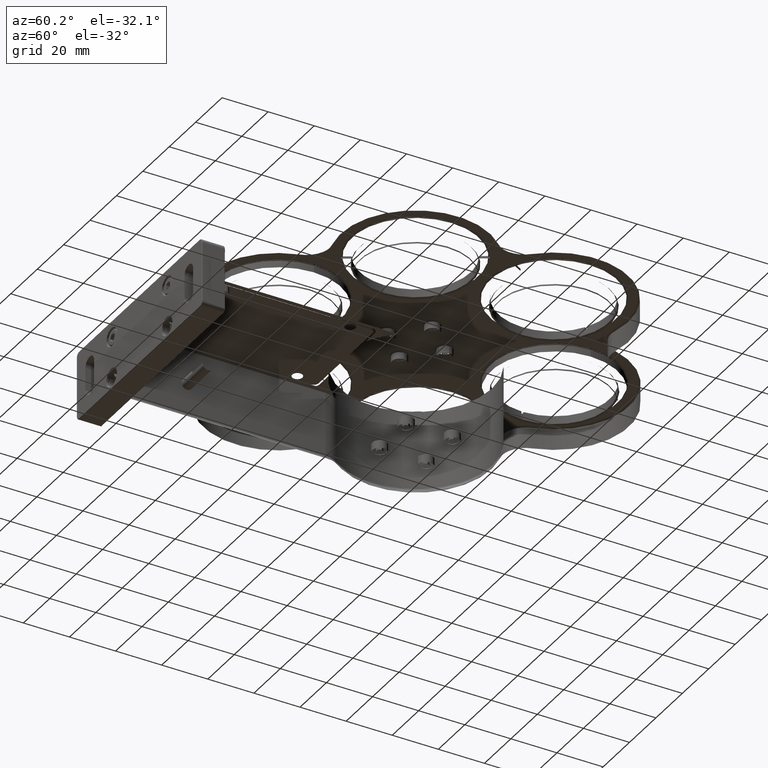
[diagram: clean part render]
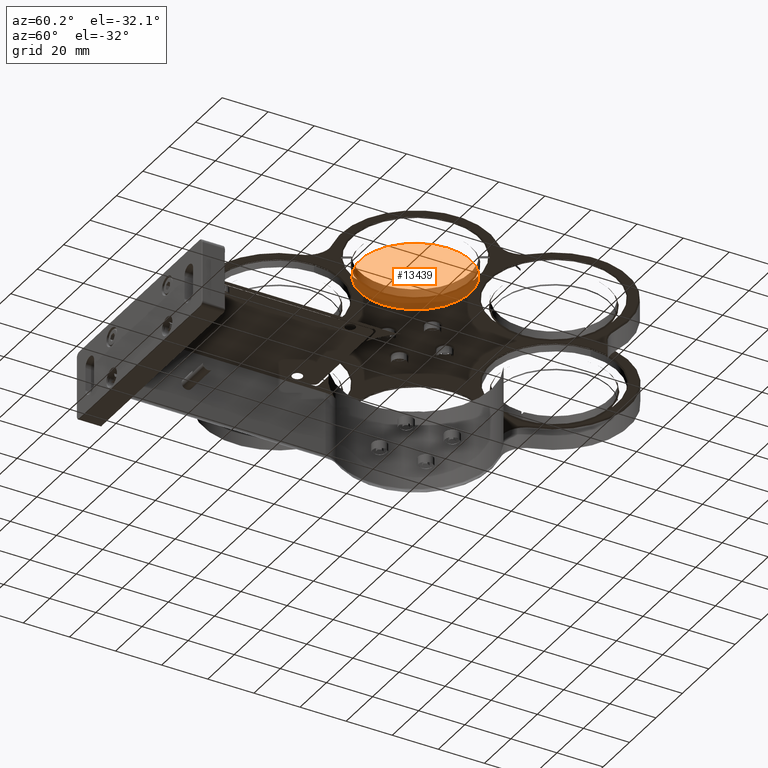
[diagram: same view with one face highlighted and labeled with its STEP entity id]
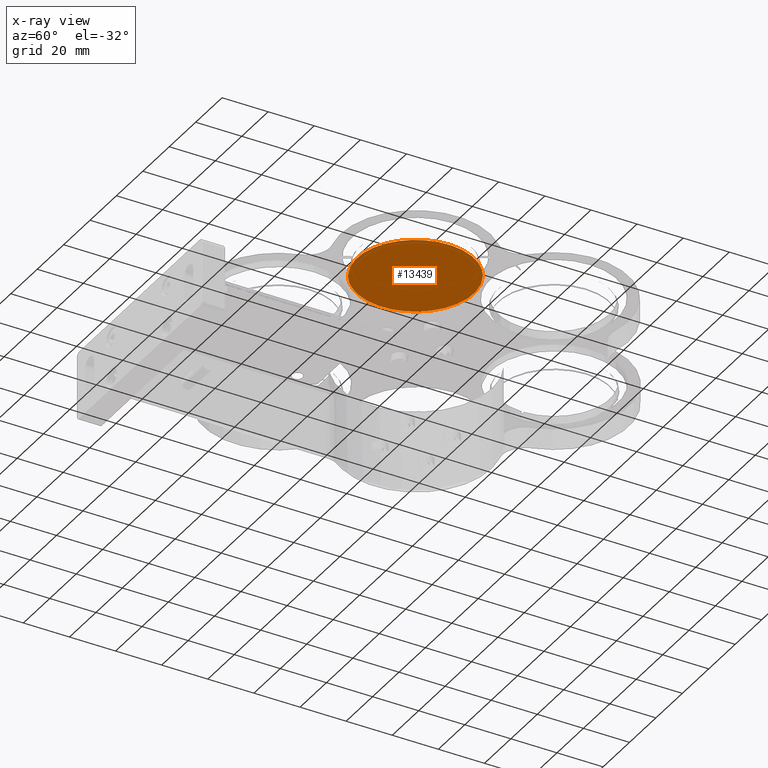
[diagram: x-ray of the same camera — body ghosted, the highlighted face saturated]
A machine part, auxiliary view. The second image highlights one B-rep face of the part: STEP entity #13439.
The next image is the same camera in x-ray: the body ghosted, the highlighted face saturated — about 0% of this face is hidden behind the body in this view.
In plain terms, the highlighted planar face has unit normal (0, 0, 1).
Its self-contained STEP definition (entity closure, byte-faithful):
#23 = CARTESIAN_POINT ( 'NONE',  ( 66.08828094714561985, 22.06936629209194223, 171.7499999999716351 ) ) ;
#94 = CARTESIAN_POINT ( 'NONE',  ( 71.55512637783223795, 30.82656138934157752, 171.7499999999716067 ) ) ;
#146 = CARTESIAN_POINT ( 'NONE',  ( 49.08216076103516201, 14.26744037111571828, 171.7499999999716351 ) ) ;
#313 = CARTESIAN_POINT ( 'NONE',  ( 65.29180787660874330, 57.99003948944349673, 171.7499999999716067 ) ) ;
#447 = CARTESIAN_POINT ( 'NONE',  ( 56.37501111014852739, 63.51499372687616329, 171.7499999999716067 ) ) ;
#523 = CARTESIAN_POINT ( 'NONE',  ( 29.37113467929706445, 57.19356641891837256, 171.7499999999715783 ) ) ;
#594 = CARTESIAN_POINT ( 'NONE',  ( 31.30648880605389195, 59.02520267034779522, 171.7499999999716920 ) ) ;
#734 = CARTESIAN_POINT ( 'NONE',  ( 22.61014768815996234, 43.39584153703773239, 171.7499999999716636 ) ) ;
#805 = CARTESIAN_POINT ( 'NONE',  ( 27.36577151826228516, 24.44746895450999702, 171.7499999999716067 ) ) ;
#876 = CARTESIAN_POINT ( 'NONE',  ( 24.27138640305989981, 49.38529497819078529, 171.7499999999716351 ) ) ;
#897 = CARTESIAN_POINT ( 'NONE',  ( 72.71793573837787505, 44.51205049813060555, 171.7499999999716067 ) ) ;
#947 = CARTESIAN_POINT ( 'NONE',  ( 35.02970781321895544, 17.63442109937980362, 171.7499999999716067 ) ) ;
#971 = CARTESIAN_POINT ( 'NONE',  ( 63.46716118377388227, 19.69418575389999759, 171.7499999999716636 ) ) ;
#1013 = VERTEX_POINT ( 'NONE', #7198 ) ;
#1022 = CARTESIAN_POINT ( 'NONE',  ( 24.96476594174525587, 28.36555949242180930, 171.7499999999716067 ) ) ;
#1096 = CARTESIAN_POINT ( 'NONE',  ( 56.39643627717148888, 15.72740772368959661, 171.7499999999716067 ) ) ;
#1115 = CARTESIAN_POINT ( 'NONE',  ( 66.98158778054477125, 23.06264722620868213, 171.7499999999715783 ) ) ;
#1190 = CARTESIAN_POINT ( 'NONE',  ( 72.74328964390555541, 35.20907818267751566, 171.7499999999716067 ) ) ;
#1244 = CARTESIAN_POINT ( 'NONE',  ( 48.76194988971190014, 14.25203853484026695, 171.7499999999716636 ) ) ;
#1265 = CARTESIAN_POINT ( 'NONE',  ( 60.42970781321917428, 61.62851161162917180, 171.7499999999716067 ) ) ;
#1340 = CARTESIAN_POINT ( 'NONE',  ( 70.44584643382266620, 50.99544586725571804, 171.7499999999715783 ) ) ;
#1552 = CARTESIAN_POINT ( 'NONE',  ( 58.72574216983345963, 62.55109120678198309, 171.7499999999716920 ) ) ;
#1615 = CARTESIAN_POINT ( 'NONE',  ( 28.47782784589378835, 56.20028548480048158, 171.7499999999716067 ) ) ;
#1692 = CARTESIAN_POINT ( 'NONE',  ( 50.59206736683434968, 64.88427287940130839, 171.7499999999715783 ) ) ;
#1739 = DIRECTION ( 'NONE',  ( 1.000000000000000000, 0.000000000000000000, -0.000000000000000000 ) ) ;
#1762 = CARTESIAN_POINT ( 'NONE',  ( 35.50200973619419642, 61.91107065169496337, 171.7499999999716067 ) ) ;
#1903 = CARTESIAN_POINT ( 'NONE',  ( 22.74147988809064458, 34.75088221277026435, 171.7499999999716067 ) ) ;
#1978 = CARTESIAN_POINT ( 'NONE',  ( 33.68410650230289605, 18.41130437845910706, 171.7499999999715783 ) ) ;
#2002 = CARTESIAN_POINT ( 'NONE',  ( 70.11507604894246981, 27.60402905541548435, 171.7499999999716067 ) ) ;
#2048 = CARTESIAN_POINT ( 'NONE',  ( 22.84686729799498650, 44.76068084261893176, 171.7499999999716067 ) ) ;
#2069 = CARTESIAN_POINT ( 'NONE',  ( 70.64928055853643230, 28.63528499534405825, 171.7499999999716067 ) ) ;
#2125 = CARTESIAN_POINT ( 'NONE',  ( 23.79756270792814021, 48.14105305642021193, 171.7499999999715783 ) ) ;
#2130 = CARTESIAN_POINT ( 'NONE',  ( 41.19957995746653268, 15.06088346395377187, 171.7499999999715783 ) ) ;
#2200 = CARTESIAN_POINT ( 'NONE',  ( 52.61029195583249418, 14.64323843033925598, 171.7499999999716351 ) ) ;
#2219 = CARTESIAN_POINT ( 'NONE',  ( 73.10913563388312753, 40.66370843201806196, 171.7499999999716636 ) ) ;
#2268 = CARTESIAN_POINT ( 'NONE',  ( 43.30731964031622994, 14.61788452483493650, 171.7499999999716067 ) ) ;
#2287 = CARTESIAN_POINT ( 'NONE',  ( 71.18802922340550765, 29.87763773286912183, 171.7499999999716067 ) ) ;
#2340 = CARTESIAN_POINT ( 'NONE',  ( 46.14387394272304022, 14.25540431768451732, 171.7499999999716067 ) ) ;
#2362 = CARTESIAN_POINT ( 'NONE',  ( 66.31293084164805407, 56.98139139862465896, 171.7499999999715783 ) ) ;
#2578 = CARTESIAN_POINT ( 'NONE',  ( 63.03885168340177358, 59.95890722183587229, 171.7499999999715783 ) ) ;
#2721 = CARTESIAN_POINT ( 'NONE',  ( 37.65138240413379123, 62.95385119251445616, 171.7499999999716351 ) ) ;
#2783 = CARTESIAN_POINT ( 'NONE',  ( 56.85249055113841621, 63.33806241206865906, 171.7499999999715499 ) ) ;
#2863 = CARTESIAN_POINT ( 'NONE',  ( 36.31570815460842994, 62.32250933316803554, 171.7499999999715783 ) ) ;
#2937 = CARTESIAN_POINT ( 'NONE',  ( 32.54571041218801497, 59.99540265043845011, 171.7499999999716067 ) ) ;
#3006 = CARTESIAN_POINT ( 'NONE',  ( 22.61751132632687700, 43.44462901463865734, 171.7499999999716636 ) ) ;
#3081 = CARTESIAN_POINT ( 'NONE',  ( 30.69705026504432865, 20.78669641396000500, 171.7499999999716067 ) ) ;
#3152 = CARTESIAN_POINT ( 'NONE',  ( 26.92311556908929404, 25.05143867318836470, 171.7499999999716067 ) ) ;
#3176 = CARTESIAN_POINT ( 'NONE',  ( 67.01512922147395557, 23.10170080682267013, 171.7499999999716351 ) ) ;
#3217 = CARTESIAN_POINT ( 'NONE',  ( 23.90428924861440052, 48.43637132168331050, 171.7499999999716067 ) ) ;
#3240 = CARTESIAN_POINT ( 'NONE',  ( 66.81304434915614365, 22.86825032316065176, 171.7499999999716067 ) ) ;
#3294 = CARTESIAN_POINT ( 'NONE',  ( 30.96649178086499177, 20.54812981957721263, 171.7499999999715783 ) ) ;
#3320 = CARTESIAN_POINT ( 'NONE',  ( 59.14370747182872634, 16.94042337784008723, 171.7499999999716067 ) ) ;
#3397 = CARTESIAN_POINT ( 'NONE',  ( 68.05703292636573565, 24.32218688541219009, 171.7499999999716351 ) ) ;
#3442 = CARTESIAN_POINT ( 'NONE',  ( 47.63856465410309227, 14.22510605418671936, 171.7499999999716067 ) ) ;
#3463 = CARTESIAN_POINT ( 'NONE',  ( 70.56735989353477123, 50.75007635666842987, 171.7499999999716067 ) ) ;
#3518 = CARTESIAN_POINT ( 'NONE',  ( 42.60049332608340933, 14.74862584028065449, 171.7499999999716351 ) ) ;
#3591 = CARTESIAN_POINT ( 'NONE',  ( 35.02970781321895544, 17.63442109937980362, 171.7499999999716067 ) ) ;
#3684 = CARTESIAN_POINT ( 'NONE',  ( 70.49464968468922166, 50.89737321860014418, 171.7499999999716067 ) ) ;
#3753 = CARTESIAN_POINT ( 'NONE',  ( 28.88493787165894133, 56.66412390366093632, 171.7499999999716067 ) ) ;
#3829 = CARTESIAN_POINT ( 'NONE',  ( 28.42658281403344489, 56.14055259899175354, 171.7499999999716351 ) ) ;
#3899 = CARTESIAN_POINT ( 'NONE',  ( 34.38814335024554225, 61.27545168537356091, 171.7499999999716067 ) ) ;
#3966 = CARTESIAN_POINT ( 'NONE',  ( 51.49408299475851436, 64.75102648056491716, 171.7499999999716067 ) ) ;
#4042 = CARTESIAN_POINT ( 'NONE',  ( 39.06297934939660621, 63.53552498737399645, 171.7499999999716067 ) ) ;
#4061 = B_SPLINE_CURVE_WITH_KNOTS ( 'NONE', 3,
 ( #4941, #7426, #1552, #11869, #2783, #13849, #447, #7141, #5085, #9582, #13999, #10479, #14138, #6037, #9511, #14066, #11656, #3966, #1692, #13030, #10545, #11936, #8546, #8472, #7281, #9438, #4863, #10691, #8400, #4042, #2721, #6110, #7356, #5149, #8254, #2863, #1762, #3899, #12748, #2937, #5964, #8329, #12887, #6184, #594, #9363, #523, #3753, #6253, #10760, #1615, #13927, #3829, #12820, #7214, #11724, #10621, #876, #4115, #3217, #13320, #6316, #5297, #2125, #9723, #14205, #2048, #6613, #12010, #13250, #3006, #734, #6402, #7710, #4182, #14421, #8904, #12216, #10830, #13173, #5440, #1903, #8620, #9797, #11117, #6537, #12153, #1022, #10907, #5514, #13100, #8767, #3152, #805, #13389, #14273, #9862, #10017, #8837, #6472, #8684, #3081, #3294, #7572, #14493, #7646, #7494, #12084, #1978, #947 ),
 .UNSPECIFIED., .F., .F.,
 ( 4, 1, 1, 1, 1, 1, 2, 2, 1, 1, 1, 1, 2, 2, 1, 1, 1, 1, 2, 2, 2, 1, 1, 1, 1, 2, 2, 1, 1, 1, 1, 2, 2, 1, 1, 1, 1, 1, 2, 2, 2, 1, 1, 1, 1, 1, 2, 2, 1, 1, 1, 1, 2, 2, 1, 1, 1, 1, 2, 2, 2, 1, 1, 1, 1, 2, 2, 1, 1, 1, 1, 2, 2, 1, 1, 1, 1, 1, 2, 2, 4 ),
 ( 0.000000000000000000, 0.03125000000001717376, 0.04687500000002575717, 0.05468750000002994827, 0.05859375000003194667, 0.06054687500003290423, 0.06152343750003338996, 0.06250000000003386180, 0.09375000000004229950, 0.1093750000000465183, 0.1171875000000485861, 0.1210937500000497380, 0.1230468750000501960, 0.1250000000000506262, 0.1562500000000574540, 0.1718750000000608680, 0.1796875000000625888, 0.1835937500000633105, 0.1855468750000636990, 0.1875000000000640599, 0.2500000000000751621, 0.2812500000000807132, 0.2968750000000835998, 0.3046875000000850431, 0.3085937500000856537, 0.3105468750000858758, 0.3125000000000861533, 0.3437500000000893174, 0.3593750000000908718, 0.3671875000000916489, 0.3710937500000919820, 0.3730468750000921485, 0.3750000000000923150, 0.4062500000000897060, 0.4218750000000884293, 0.4296875000000876521, 0.4335937500000872635, 0.4355468750000870415, 0.4365234375000868750, 0.4375000000000866529, 0.5000000000000692779, 0.5312500000000605072, 0.5468750000000560663, 0.5546875000000539568, 0.5585937500000528466, 0.5605468750000522915, 0.5615234375000519584, 0.5625000000000515143, 0.5937500000000434097, 0.6093750000000393019, 0.6171875000000373035, 0.6210937500000363043, 0.6230468750000358602, 0.6250000000000354161, 0.6562500000000306422, 0.6718750000000284217, 0.6796875000000272005, 0.6835937500000266454, 0.6855468750000263123, 0.6875000000000260902, 0.7500000000000209832, 0.7812500000000186517, 0.7968750000000175415, 0.8046875000000168754, 0.8085937500000166533, 0.8105468750000164313, 0.8125000000000163203, 0.8437500000000149880, 0.8593750000000142109, 0.8671875000000138778, 0.8710937500000136557, 0.8730468750000135447, 0.8750000000000133227, 0.9062500000000106581, 0.9218750000000092149, 0.9296875000000086597, 0.9335937500000082157, 0.9355468750000081046, 0.9365234375000081046, 0.9375000000000081046, 1.000000000000000000 ),
 .UNSPECIFIED. ) ;
#4115 = CARTESIAN_POINT ( 'NONE',  ( 24.02313455302831713, 48.75431340750493803, 171.7499999999716067 ) ) ;
#4182 = CARTESIAN_POINT ( 'NONE',  ( 22.32334751189363686, 39.72260951458907385, 171.7499999999716067 ) ) ;
#4284 = CARTESIAN_POINT ( 'NONE',  ( 65.07963285632267514, 21.04824332704498957, 171.7499999999716067 ) ) ;
#4355 = CARTESIAN_POINT ( 'NONE',  ( 71.66185291850929673, 31.12187965458616645, 171.7499999999715783 ) ) ;
#4373 = B_SPLINE_CURVE_WITH_KNOTS ( 'NONE', 3,
 ( #3591, #11193, #10168, #10310, #13621, #4555, #10088, #6835, #11418, #9060, #5806, #2130, #3518, #2268, #12304, #11122, #5520, #4406, #13550, #2340, #3442, #7938, #1244, #7797, #10242, #146, #8910, #2200, #6689, #1096, #5588, #14567, #10039, #13275, #7596, #3320, #11143, #12393, #5468, #8860, #10111, #5685, #14515, #971, #14445, #4284, #23, #7736, #3240, #9971, #1115, #3176, #12245, #3397, #5385, #2002, #2069, #2287, #6558, #94, #7889, #9009, #12324, #4355, #6495, #13341, #8714, #1190, #8788, #11282, #10188, #13198, #5541, #6637, #11213, #7818, #2219, #10997, #6711, #5608, #4500, #897, #11067, #9890, #14369, #4647, #3463, #3684, #1340, #12464, #10411, #5898, #9146, #7958, #5826, #12674, #9080, #6857, #8181, #2362, #313, #11368, #13570, #5755, #4798, #13645, #11510, #2578, #9299, #1265 ),
 .UNSPECIFIED., .F., .F.,
 ( 4, 1, 1, 1, 1, 1, 2, 2, 1, 1, 1, 1, 2, 2, 1, 1, 1, 1, 2, 2, 2, 1, 1, 1, 1, 2, 2, 1, 1, 1, 1, 2, 2, 1, 1, 1, 1, 1, 2, 2, 2, 1, 1, 1, 1, 1, 2, 2, 1, 1, 1, 1, 2, 2, 1, 1, 1, 1, 2, 2, 2, 1, 1, 1, 1, 2, 2, 1, 1, 1, 1, 2, 2, 1, 1, 1, 1, 1, 2, 2, 4 ),
 ( 0.000000000000000000, 0.03124999999998653161, 0.04687499999997977312, 0.05468749999997653960, 0.05859374999997492978, 0.06054687499997422201, 0.06152343749997390282, 0.06249999999997357669, 0.09374999999996824762, 0.1093749999999657080, 0.1171874999999644451, 0.1210937499999639316, 0.1230468749999638206, 0.1249999999999636957, 0.1562499999999590328, 0.1718749999999567013, 0.1796874999999555356, 0.1835937499999549527, 0.1855468749999547862, 0.1874999999999545919, 0.2499999999999500955, 0.2812499999999477085, 0.2968749999999466538, 0.3046874999999460987, 0.3085937499999457656, 0.3105468749999455436, 0.3124999999999453215, 0.3437499999999392153, 0.3593749999999361622, 0.3671874999999347189, 0.3710937499999339972, 0.3730468749999336087, 0.3749999999999331646, 0.4062499999999308331, 0.4218749999999296674, 0.4296874999999290012, 0.4335937499999286682, 0.4355468749999284461, 0.4365234374999286127, 0.4374999999999287237, 0.4999999999999347189, 0.5312499999999378275, 0.5468749999999393818, 0.5546874999999402700, 0.5585937499999408251, 0.5605468749999410472, 0.5615234374999410472, 0.5624999999999410472, 0.5937499999999433786, 0.6093749999999443778, 0.6171874999999449329, 0.6210937499999451550, 0.6230468749999451550, 0.6249999999999452660, 0.6562499999999464873, 0.6718749999999472644, 0.6796874999999475975, 0.6835937499999477085, 0.6855468749999478195, 0.6874999999999478195, 0.7499999999999540368, 0.7812499999999572564, 0.7968749999999590328, 0.8046874999999596989, 0.8085937499999601430, 0.8105468749999603650, 0.8124999999999606981, 0.8437499999999665823, 0.8593749999999695799, 0.8671874999999711342, 0.8710937499999718003, 0.8730468749999723554, 0.8749999999999727995, 0.9062499999999801270, 0.9218749999999835687, 0.9296874999999854561, 0.9335937499999861222, 0.9355468749999863443, 0.9365234374999866773, 0.9374999999999871214, 1.000000000000000000 ),
 .UNSPECIFIED. ) ;
#4406 = CARTESIAN_POINT ( 'NONE',  ( 43.96533263168731054, 14.51190623044502104, 171.7499999999715783 ) ) ;
#4500 = CARTESIAN_POINT ( 'NONE',  ( 72.99361255833409245, 42.78907769725077515, 171.7499999999716351 ) ) ;
#4555 = CARTESIAN_POINT ( 'NONE',  ( 38.92483730101012185, 15.80603557855813435, 171.7499999999716351 ) ) ;
#4647 = CARTESIAN_POINT ( 'NONE',  ( 70.73355437532744361, 50.40506845618956078, 171.7499999999716067 ) ) ;
#4798 = CARTESIAN_POINT ( 'NONE',  ( 64.29852694251273704, 58.88334632283135761, 171.7499999999716351 ) ) ;
#4863 = CARTESIAN_POINT ( 'NONE',  ( 44.57209647166945388, 64.89537110065266745, 171.7499999999716351 ) ) ;
#4914 = PLANE ( 'NONE',  #14005 ) ;
#4941 = CARTESIAN_POINT ( 'NONE',  ( 60.42970781321917428, 61.62851161162917180, 171.7499999999716067 ) ) ;
#5085 = CARTESIAN_POINT ( 'NONE',  ( 56.26078717682761976, 63.55595669865410002, 171.7499999999715783 ) ) ;
#5149 = CARTESIAN_POINT ( 'NONE',  ( 36.46380095013972067, 62.39640822698138578, 171.7499999999716636 ) ) ;
#5297 = CARTESIAN_POINT ( 'NONE',  ( 23.80521931645942146, 48.16255092822547113, 171.7499999999716067 ) ) ;
#5385 = CARTESIAN_POINT ( 'NONE',  ( 68.95010711014626281, 25.58634095568219990, 171.7499999999716067 ) ) ;
#5440 = CARTESIAN_POINT ( 'NONE',  ( 22.46580306811568661, 36.47385501372002636, 171.7499999999716067 ) ) ;
#5468 = CARTESIAN_POINT ( 'NONE',  ( 62.30973549561790747, 18.82487411143214118, 171.7499999999716067 ) ) ;
#5514 = CARTESIAN_POINT ( 'NONE',  ( 25.03866483555740174, 28.21746669689088449, 171.7499999999716636 ) ) ;
#5520 = CARTESIAN_POINT ( 'NONE',  ( 43.91654515408291815, 14.51926986861233004, 171.7499999999716067 ) ) ;
#5541 = CARTESIAN_POINT ( 'NONE',  ( 72.98251433713079450, 36.76910680181656232, 171.7499999999716636 ) ) ;
#5588 = CARTESIAN_POINT ( 'NONE',  ( 57.80803322240179654, 16.30908151853547849, 171.7499999999716067 ) ) ;
#5608 = CARTESIAN_POINT ( 'NONE',  ( 73.09373379760801015, 40.98391930332029887, 171.7499999999716067 ) ) ;
#5685 = CARTESIAN_POINT ( 'NONE',  ( 63.33884387946686445, 19.59355335183143154, 171.7499999999715783 ) ) ;
#5755 = CARTESIAN_POINT ( 'NONE',  ( 64.35702302310745893, 58.83295323626975915, 171.7499999999716067 ) ) ;
#5806 = CARTESIAN_POINT ( 'NONE',  ( 40.02063580125002318, 15.41557570044217407, 171.7499999999715783 ) ) ;
#5826 = CARTESIAN_POINT ( 'NONE',  ( 67.86632628199457429, 55.11363314312012562, 171.7499999999716067 ) ) ;
#5898 = CARTESIAN_POINT ( 'NONE',  ( 69.37369314303185774, 52.97303081856779983, 171.7499999999716067 ) ) ;
#5964 = CARTESIAN_POINT ( 'NONE',  ( 32.24754102562447144, 59.76808482429320435, 171.7499999999715783 ) ) ;
#6037 = CARTESIAN_POINT ( 'NONE',  ( 52.15209598599847141, 64.64504818621684024, 171.7499999999716067 ) ) ;
#6110 = CARTESIAN_POINT ( 'NONE',  ( 36.95610571258598043, 62.63531291763430175, 171.7499999999716351 ) ) ;
#6184 = CARTESIAN_POINT ( 'NONE',  ( 31.99225444266405560, 59.56874695710896361, 171.7499999999716067 ) ) ;
#6253 = CARTESIAN_POINT ( 'NONE',  ( 28.64637127728341426, 56.39468238784877485, 171.7499999999715783 ) ) ;
#6316 = CARTESIAN_POINT ( 'NONE',  ( 23.82156857178022946, 48.20826304768554138, 171.7499999999715783 ) ) ;
#6402 = CARTESIAN_POINT ( 'NONE',  ( 22.47690128930121389, 42.49382590921912595, 171.7499999999716636 ) ) ;
#6472 = CARTESIAN_POINT ( 'NONE',  ( 29.14648478471596249, 22.28154131244270886, 171.7499999999715783 ) ) ;
#6495 = CARTESIAN_POINT ( 'NONE',  ( 71.94559846830348704, 31.92239434363455786, 171.7499999999716067 ) ) ;
#6537 = CARTESIAN_POINT ( 'NONE',  ( 24.72586125109904387, 28.85786425486078954, 171.7499999999715783 ) ) ;
#6558 = CARTESIAN_POINT ( 'NONE',  ( 71.43628107342571809, 30.50861930353374518, 171.7499999999716351 ) ) ;
#6613 = CARTESIAN_POINT ( 'NONE',  ( 22.71612598254936088, 44.05385452839493610, 171.7499999999716067 ) ) ;
#6637 = CARTESIAN_POINT ( 'NONE',  ( 73.10576985103847392, 38.04563248509703044, 171.7499999999716067 ) ) ;
#6689 = CARTESIAN_POINT ( 'NONE',  ( 55.15042136031820519, 15.32380633647355950, 171.7499999999716067 ) ) ;
#6711 = CARTESIAN_POINT ( 'NONE',  ( 73.09647389156354791, 40.93147902033463481, 171.7499999999716351 ) ) ;
#6835 = CARTESIAN_POINT ( 'NONE',  ( 39.15292141621233668, 15.72332346490165556, 171.7499999999716067 ) ) ;
#6857 = CARTESIAN_POINT ( 'NONE',  ( 67.66698841482464388, 55.36891972605868517, 171.7499999999716067 ) ) ;
#7120 = CARTESIAN_POINT ( 'NONE',  ( 47.72970781321905775, 39.63146635550449304, 171.7499999999716067 ) ) ;
#7141 = CARTESIAN_POINT ( 'NONE',  ( 56.30649421022515355, 63.53960924610768757, 171.7499999999716636 ) ) ;
#7198 = CARTESIAN_POINT ( 'NONE',  ( 35.02970781321895544, 17.63442109937980362, 171.7499999999716067 ) ) ;
#7214 = CARTESIAN_POINT ( 'NONE',  ( 26.50930851625030371, 53.67659175524923398, 171.7499999999716067 ) ) ;
#7281 = CARTESIAN_POINT ( 'NONE',  ( 46.42969514837997735, 64.99823243384714999, 171.7499999999716067 ) ) ;
#7356 = CARTESIAN_POINT ( 'NONE',  ( 36.61109781208297420, 62.46911843583166757, 171.7499999999716351 ) ) ;
#7426 = CARTESIAN_POINT ( 'NONE',  ( 59.75706111128175024, 62.01686436606225072, 171.7499999999715783 ) ) ;
#7494 = CARTESIAN_POINT ( 'NONE',  ( 31.22061945098250391, 20.32834316496286675, 171.7499999999716067 ) ) ;
#7572 = CARTESIAN_POINT ( 'NONE',  ( 31.10239260332167177, 20.42997947474628617, 171.7499999999715783 ) ) ;
#7596 = CARTESIAN_POINT ( 'NONE',  ( 59.09368732497109988, 16.91532773490127539, 171.7499999999716351 ) ) ;
#7646 = CARTESIAN_POINT ( 'NONE',  ( 31.19994226453568231, 20.34604494725105184, 171.7499999999716351 ) ) ;
#7710 = CARTESIAN_POINT ( 'NONE',  ( 22.35364577538888753, 41.21730022595868093, 171.7499999999716351 ) ) ;
#7736 = CARTESIAN_POINT ( 'NONE',  ( 66.57447775478183871, 22.59880880734883490, 171.7499999999715783 ) ) ;
#7797 = CARTESIAN_POINT ( 'NONE',  ( 48.92260258066127676, 14.25943290195341717, 171.7499999999716351 ) ) ;
#7818 = CARTESIAN_POINT ( 'NONE',  ( 73.12284228727010316, 40.28902123901656296, 171.7499999999716067 ) ) ;
#7889 = CARTESIAN_POINT ( 'NONE',  ( 71.61322887488459799, 30.98614525736437031, 171.7499999999716067 ) ) ;
#7936 = EDGE_CURVE ( 'NONE', #11230, #1013, #4061, .T. ) ;
#7938 = CARTESIAN_POINT ( 'NONE',  ( 48.38726269669241020, 14.23833188145317408, 171.7499999999716067 ) ) ;
#7958 = CARTESIAN_POINT ( 'NONE',  ( 68.09364410812835899, 54.81546375657480041, 171.7499999999715783 ) ) ;
#8181 = CARTESIAN_POINT ( 'NONE',  ( 67.12344412804390004, 56.05468536268264046, 171.7499999999715783 ) ) ;
#8254 = CARTESIAN_POINT ( 'NONE',  ( 36.36572830147616031, 62.34760497611157604, 171.7499999999716351 ) ) ;
#8329 = CARTESIAN_POINT ( 'NONE',  ( 32.12057174697494588, 59.66937935918090119, 171.7499999999716351 ) ) ;
#8400 = CARTESIAN_POINT ( 'NONE',  ( 40.30899426619417625, 63.93912637456664072, 171.7499999999716067 ) ) ;
#8472 = CARTESIAN_POINT ( 'NONE',  ( 46.53681304574725885, 65.00349980905195935, 171.7499999999716351 ) ) ;
#8546 = CARTESIAN_POINT ( 'NONE',  ( 46.69746573667566736, 65.01089417616249477, 171.7499999999716067 ) ) ;
#8620 = CARTESIAN_POINT ( 'NONE',  ( 23.42204779416971760, 32.21075280846574884, 171.7499999999716351 ) ) ;
#8684 = CARTESIAN_POINT ( 'NONE',  ( 30.16760774977381132, 21.27289322160929430, 171.7499999999716067 ) ) ;
#8714 = CARTESIAN_POINT ( 'NONE',  ( 72.61254832847194507, 34.50225186849887393, 171.7499999999715783 ) ) ;
#8767 = CARTESIAN_POINT ( 'NONE',  ( 26.08572248329787868, 26.28990189261452315, 171.7499999999716351 ) ) ;
#8788 = CARTESIAN_POINT ( 'NONE',  ( 72.80231342752283297, 35.56408374723982035, 171.7499999999716067 ) ) ;
#8837 = CARTESIAN_POINT ( 'NONE',  ( 28.33597149835187778, 23.20824734835970560, 171.7499999999716067 ) ) ;
#8860 = CARTESIAN_POINT ( 'NONE',  ( 62.91370521426183160, 19.26753006058123319, 171.7499999999716067 ) ) ;
#8902 = ORIENTED_EDGE ( 'NONE', *, *, #9202, .T. ) ;
#8904 = CARTESIAN_POINT ( 'NONE',  ( 22.35027999255244779, 38.59922427900187358, 171.7499999999715783 ) ) ;
#8910 = CARTESIAN_POINT ( 'NONE',  ( 50.88731915495570490, 14.36756161038386104, 171.7499999999716351 ) ) ;
#9009 = CARTESIAN_POINT ( 'NONE',  ( 71.63784705466044045, 31.05466966332820178, 171.7499999999716067 ) ) ;
#9060 = CARTESIAN_POINT ( 'NONE',  ( 39.22012111230385756, 15.69932125021356661, 171.7499999999716351 ) ) ;
#9080 = CARTESIAN_POINT ( 'NONE',  ( 67.70153194245632733, 55.32506691834209533, 171.7499999999715783 ) ) ;
#9146 = CARTESIAN_POINT ( 'NONE',  ( 68.53630005726751051, 54.21149403795063648, 171.7499999999716067 ) ) ;
#9202 = EDGE_CURVE ( 'NONE', #1013, #11230, #4373, .T. ) ;
#9299 = CARTESIAN_POINT ( 'NONE',  ( 61.77530912415407016, 60.85162833253897929, 171.7499999999715783 ) ) ;
#9363 = CARTESIAN_POINT ( 'NONE',  ( 30.37978277012156525, 58.21468938396577641, 171.7499999999716351 ) ) ;
#9413 = FACE_OUTER_BOUND ( 'NONE', #9636, .T. ) ;
#9438 = CARTESIAN_POINT ( 'NONE',  ( 46.37725486539710573, 64.99549233989242225, 171.7499999999715783 ) ) ;
#9511 = CARTESIAN_POINT ( 'NONE',  ( 51.79709042145826459, 64.70407196982210962, 171.7499999999715783 ) ) ;
#9582 = CARTESIAN_POINT ( 'NONE',  ( 56.23929451413934544, 63.56361146079367330, 171.7499999999716067 ) ) ;
#9636 = EDGE_LOOP ( 'NONE', ( #12971, #8902 ) ) ;
#9723 = CARTESIAN_POINT ( 'NONE',  ( 23.51381715815657358, 47.34053836745735566, 171.7499999999716067 ) ) ;
#9797 = CARTESIAN_POINT ( 'NONE',  ( 23.82564918137193999, 30.96473789165779067, 171.7499999999716636 ) ) ;
#9862 = CARTESIAN_POINT ( 'NONE',  ( 27.75788368397414629, 23.93786579267905523, 171.7499999999715783 ) ) ;
#9890 = CARTESIAN_POINT ( 'NONE',  ( 71.63376644503956925, 48.29819481944578285, 171.7499999999715783 ) ) ;
#9971 = CARTESIAN_POINT ( 'NONE',  ( 66.93119469398233434, 23.00415114561239349, 171.7499999999716636 ) ) ;
#10017 = CARTESIAN_POINT ( 'NONE',  ( 27.79242721161610064, 23.89401298494819414, 171.7499999999716067 ) ) ;
#10039 = CARTESIAN_POINT ( 'NONE',  ( 58.84831781438561649, 16.79381427519014025, 171.7499999999716067 ) ) ;
#10088 = CARTESIAN_POINT ( 'NONE',  ( 39.08440451628850809, 15.74793898413346227, 171.7499999999716351 ) ) ;
#10111 = CARTESIAN_POINT ( 'NONE',  ( 63.21187460081992526, 19.49484788672150160, 171.7499999999716067 ) ) ;
#10168 = CARTESIAN_POINT ( 'NONE',  ( 36.73367345659557515, 16.71184150423224679, 171.7499999999716636 ) ) ;
#10188 = CARTESIAN_POINT ( 'NONE',  ( 72.84190430011395279, 35.81830369638053213, 171.7499999999716351 ) ) ;
#10242 = CARTESIAN_POINT ( 'NONE',  ( 49.02972047804298938, 14.26470027715997446, 171.7499999999716351 ) ) ;
#10310 = CARTESIAN_POINT ( 'NONE',  ( 37.97598944323640069, 16.17310586585191245, 171.7499999999716067 ) ) ;
#10411 = CARTESIAN_POINT ( 'NONE',  ( 70.00931210937737603, 51.85916443258067687, 171.7499999999716351 ) ) ;
#10479 = CARTESIAN_POINT ( 'NONE',  ( 54.25983566868958974, 64.20204924715297068, 171.7499999999716067 ) ) ;
#10545 = CARTESIAN_POINT ( 'NONE',  ( 47.82085097217320424, 65.03782665680229513, 171.7499999999715783 ) ) ;
#10621 = CARTESIAN_POINT ( 'NONE',  ( 24.81013506793803813, 50.62764771573280598, 171.7499999999715783 ) ) ;
#10691 = CARTESIAN_POINT ( 'NONE',  ( 42.84912367045711790, 64.61969428060736220, 171.7499999999716351 ) ) ;
#10760 = CARTESIAN_POINT ( 'NONE',  ( 28.52822093245653434, 56.25878156539683062, 171.7499999999715783 ) ) ;
#10804 = DIRECTION ( 'NONE',  ( 0.000000000000000000, 0.000000000000000000, 1.000000000000000000 ) ) ;
#10830 = CARTESIAN_POINT ( 'NONE',  ( 22.36294173487383219, 38.33145369067764108, 171.7499999999716351 ) ) ;
#10907 = CARTESIAN_POINT ( 'NONE',  ( 25.01356919261358414, 28.26748684375990095, 171.7499999999716636 ) ) ;
#10997 = CARTESIAN_POINT ( 'NONE',  ( 73.10174126677006257, 40.82436112295884101, 171.7499999999715783 ) ) ;
#11067 = CARTESIAN_POINT ( 'NONE',  ( 72.03736783225318163, 47.05217990259728822, 171.7499999999716351 ) ) ;
#11117 = CARTESIAN_POINT ( 'NONE',  ( 24.40732297622587765, 29.55314094640103306, 171.7499999999715783 ) ) ;
#11122 = CARTESIAN_POINT ( 'NONE',  ( 43.81481167705864976, 14.53492487839137759, 171.7499999999716351 ) ) ;
#11143 = CARTESIAN_POINT ( 'NONE',  ( 59.95740589025920997, 17.35186205932799908, 171.7499999999716636 ) ) ;
#11193 = CARTESIAN_POINT ( 'NONE',  ( 35.70235451515116409, 17.24606834494972318, 171.7499999999715783 ) ) ;
#11213 = CARTESIAN_POINT ( 'NONE',  ( 73.13606811453642820, 39.54032319645494198, 171.7499999999716067 ) ) ;
#11230 = VERTEX_POINT ( 'NONE', #13027 ) ;
#11282 = CARTESIAN_POINT ( 'NONE',  ( 72.82624929033750050, 35.71657021936788112, 171.7499999999716351 ) ) ;
#11368 = CARTESIAN_POINT ( 'NONE',  ( 64.76236536136136124, 58.47623629707452153, 171.7499999999716067 ) ) ;
#11418 = CARTESIAN_POINT ( 'NONE',  ( 39.19862844961020443, 15.70697601235509389, 171.7499999999716636 ) ) ;
#11510 = CARTESIAN_POINT ( 'NONE',  ( 64.23879617545534870, 58.93458954604628985, 171.7499999999716351 ) ) ;
#11656 = CARTESIAN_POINT ( 'NONE',  ( 51.54287047233537322, 64.74366284240349501, 171.7499999999715783 ) ) ;
#11724 = CARTESIAN_POINT ( 'NONE',  ( 25.34433957751642907, 51.65890365563230091, 171.7499999999716636 ) ) ;
#11869 = CARTESIAN_POINT ( 'NONE',  ( 57.48342618319492203, 63.08982684516098516, 171.7499999999716351 ) ) ;
#11936 = CARTESIAN_POINT ( 'NONE',  ( 47.07215292965133102, 65.02460082954415554, 171.7499999999715783 ) ) ;
#12010 = CARTESIAN_POINT ( 'NONE',  ( 22.65710219892427801, 43.69884896380315809, 171.7499999999716351 ) ) ;
#12084 = CARTESIAN_POINT ( 'NONE',  ( 32.42056394305524236, 19.30402548916216077, 171.7499999999716351 ) ) ;
#12153 = CARTESIAN_POINT ( 'NONE',  ( 24.89205573289714479, 28.51285635436269672, 171.7499999999716067 ) ) ;
#12216 = CARTESIAN_POINT ( 'NONE',  ( 22.35767435966657501, 38.43857158805654706, 171.7499999999716351 ) ) ;
#12245 = CARTESIAN_POINT ( 'NONE',  ( 67.03283281240435088, 23.12238011201682042, 171.7499999999716067 ) ) ;
#12304 = CARTESIAN_POINT ( 'NONE',  ( 43.66232520491376334, 14.55886074120979679, 171.7499999999716351 ) ) ;
#12324 = CARTESIAN_POINT ( 'NONE',  ( 71.65419630997998013, 31.10038178278593080, 171.7499999999716351 ) ) ;
#12393 = CARTESIAN_POINT ( 'NONE',  ( 61.07127227621933230, 17.98748102565984652, 171.7499999999716636 ) ) ;
#12464 = CARTESIAN_POINT ( 'NONE',  ( 70.42075079088461109, 51.04546601411189499, 171.7499999999716067 ) ) ;
#12674 = CARTESIAN_POINT ( 'NONE',  ( 67.76762081688775652, 55.24060242176094704, 171.7499999999716351 ) ) ;
#12748 = CARTESIAN_POINT ( 'NONE',  ( 33.14968013084026666, 60.43805859959515914, 171.7499999999716067 ) ) ;
#12820 = CARTESIAN_POINT ( 'NONE',  ( 27.40238270009283283, 54.94074582562659970, 171.7499999999716636 ) ) ;
#12887 = CARTESIAN_POINT ( 'NONE',  ( 32.03610725038776508, 59.60329048474573455, 171.7499999999716636 ) ) ;
#12971 = ORIENTED_EDGE ( 'NONE', *, *, #7936, .T. ) ;
#13027 = CARTESIAN_POINT ( 'NONE',  ( 60.42970781321917428, 61.62851161162917180, 171.7499999999716067 ) ) ;
#13030 = CARTESIAN_POINT ( 'NONE',  ( 49.31554168349934741, 65.00752839329784649, 171.7499999999715783 ) ) ;
#13100 = CARTESIAN_POINT ( 'NONE',  ( 25.45010351699883344, 27.40376827852735175, 171.7499999999716351 ) ) ;
#13173 = CARTESIAN_POINT ( 'NONE',  ( 22.36568182882975719, 38.27901340768989513, 171.7499999999716067 ) ) ;
#13198 = CARTESIAN_POINT ( 'NONE',  ( 72.84926793827852975, 35.86709117396957680, 171.7499999999716067 ) ) ;
#13250 = CARTESIAN_POINT ( 'NONE',  ( 22.63316633610590500, 43.54636249166102147, 171.7499999999716920 ) ) ;
#13275 = CARTESIAN_POINT ( 'NONE',  ( 58.99561467631623657, 16.86652448403510363, 171.7499999999716067 ) ) ;
#13320 = CARTESIAN_POINT ( 'NONE',  ( 23.84618675155791578, 48.27678745365283675, 171.7499999999716067 ) ) ;
#13341 = CARTESIAN_POINT ( 'NONE',  ( 72.30029070480851772, 33.10133849992538302, 171.7499999999716351 ) ) ;
#13389 = CARTESIAN_POINT ( 'NONE',  ( 27.59308934441812866, 24.14929956792948218, 171.7499999999716067 ) ) ;
#13439 = ADVANCED_FACE ( 'NONE', ( #9413 ), #4914, .T. ) ;
#13550 = CARTESIAN_POINT ( 'NONE',  ( 44.86734825948050798, 14.37865983159247207, 171.7499999999716351 ) ) ;
#13570 = CARTESIAN_POINT ( 'NONE',  ( 64.49292384555576518, 58.71480289144545850, 171.7499999999716067 ) ) ;
#13621 = CARTESIAN_POINT ( 'NONE',  ( 38.60692507529573447, 15.92487029894257944, 171.7499999999716067 ) ) ;
#13645 = CARTESIAN_POINT ( 'NONE',  ( 64.25947336189980774, 58.91688776375998771, 171.7499999999716067 ) ) ;
#13849 = CARTESIAN_POINT ( 'NONE',  ( 56.53457832542587624, 63.45689713245206320, 171.7499999999716067 ) ) ;
#13927 = CARTESIAN_POINT ( 'NONE',  ( 28.44428640496437311, 56.16123190418640831, 171.7499999999716636 ) ) ;
#13999 = CARTESIAN_POINT ( 'NONE',  ( 55.43877982502694834, 63.84735701062268731, 171.7499999999716636 ) ) ;
#14005 = AXIS2_PLACEMENT_3D ( 'NONE', #7120, #10804, #1739 ) ;
#14066 = CARTESIAN_POINT ( 'NONE',  ( 51.64460394934076959, 64.72800783263102176, 171.7499999999715783 ) ) ;
#14138 = CARTESIAN_POINT ( 'NONE',  ( 52.85892230014324156, 64.51430687080168980, 171.7499999999716351 ) ) ;
#14205 = CARTESIAN_POINT ( 'NONE',  ( 23.15912492166801684, 46.16159421122875273, 171.7499999999716067 ) ) ;
#14273 = CARTESIAN_POINT ( 'NONE',  ( 27.69179480953548733, 24.02233028927184577, 171.7499999999717204 ) ) ;
#14369 = CARTESIAN_POINT ( 'NONE',  ( 71.05209265019230713, 49.70979176467887584, 171.7499999999716351 ) ) ;
#14421 = CARTESIAN_POINT ( 'NONE',  ( 22.33657333916329790, 38.97391147201285833, 171.7499999999716067 ) ) ;
#14445 = CARTESIAN_POINT ( 'NONE',  ( 64.15292682038773364, 20.23773004066222825, 171.7499999999716067 ) ) ;
#14493 = CARTESIAN_POINT ( 'NONE',  ( 31.16088868392019151, 20.37958638818171053, 171.7499999999715783 ) ) ;
#14515 = CARTESIAN_POINT ( 'NONE',  ( 63.42330837605228311, 19.65964222626499947, 171.7499999999716351 ) ) ;
#14567 = CARTESIAN_POINT ( 'NONE',  ( 58.50330991390902113, 16.62761979339856921, 171.7499999999716920 ) ) ;